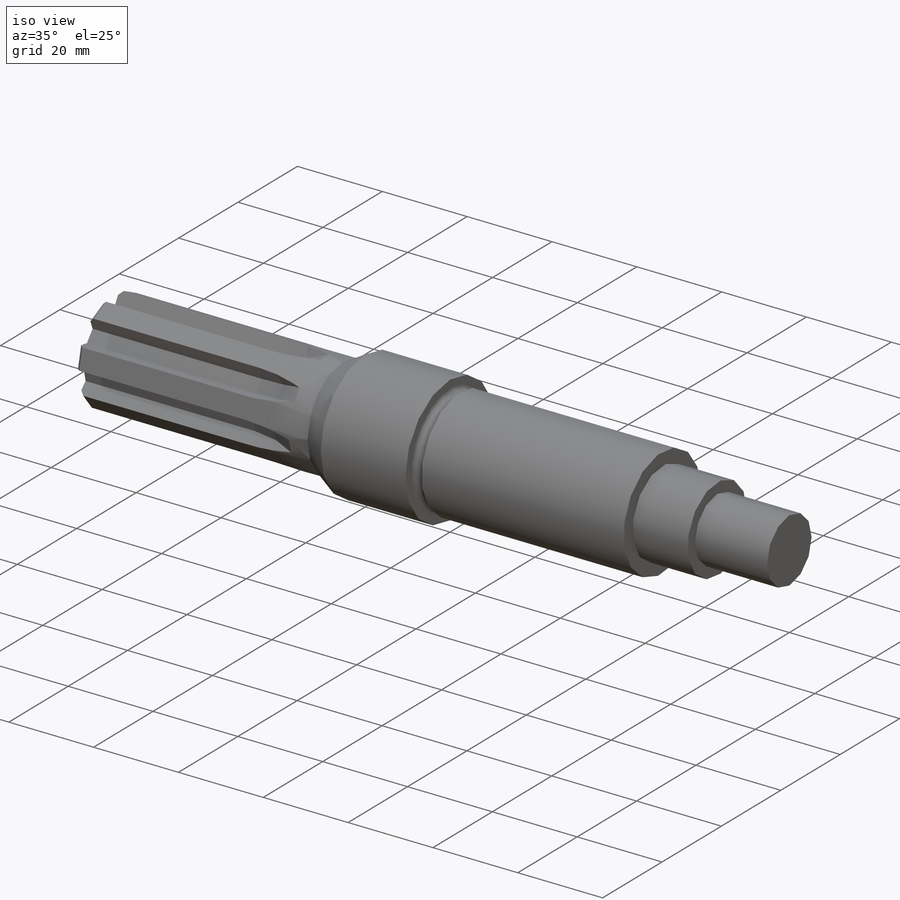
[diagram: iso view]
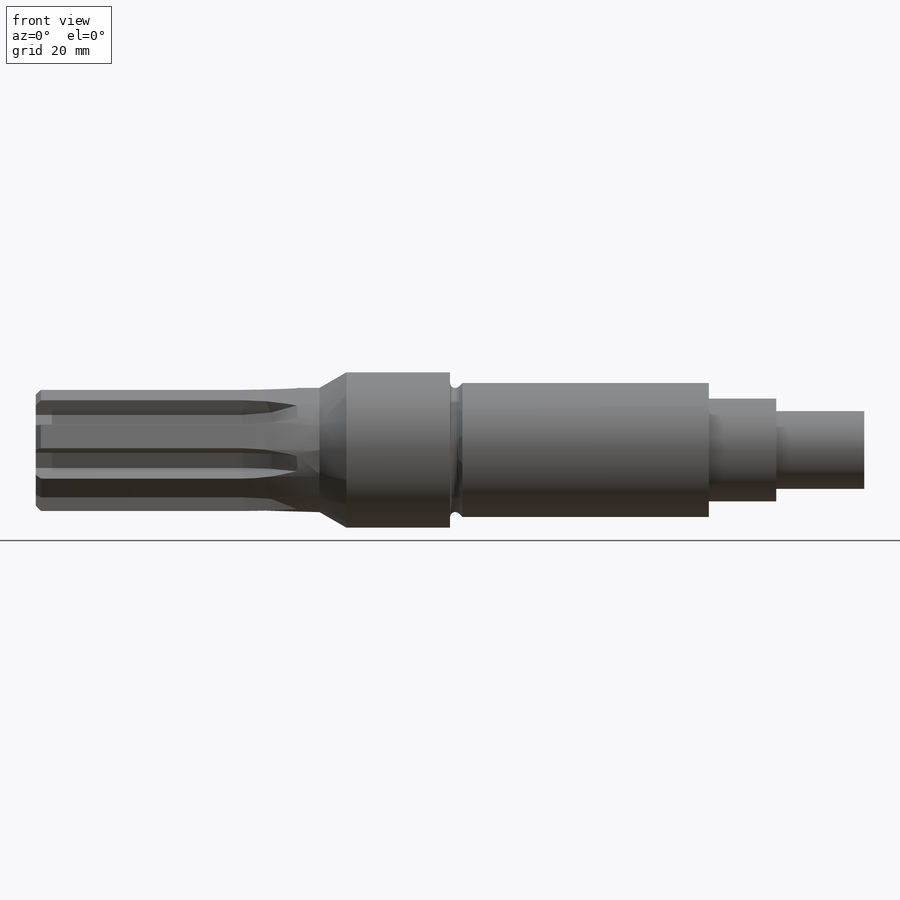
[diagram: front view]
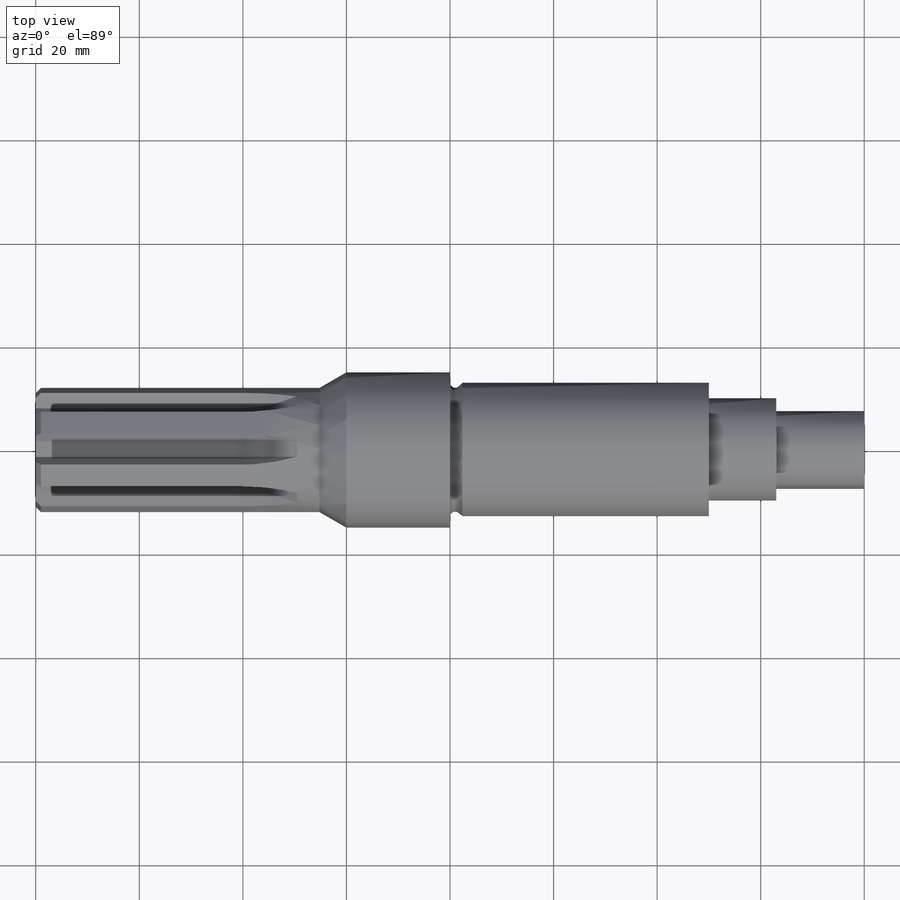
[diagram: top view]
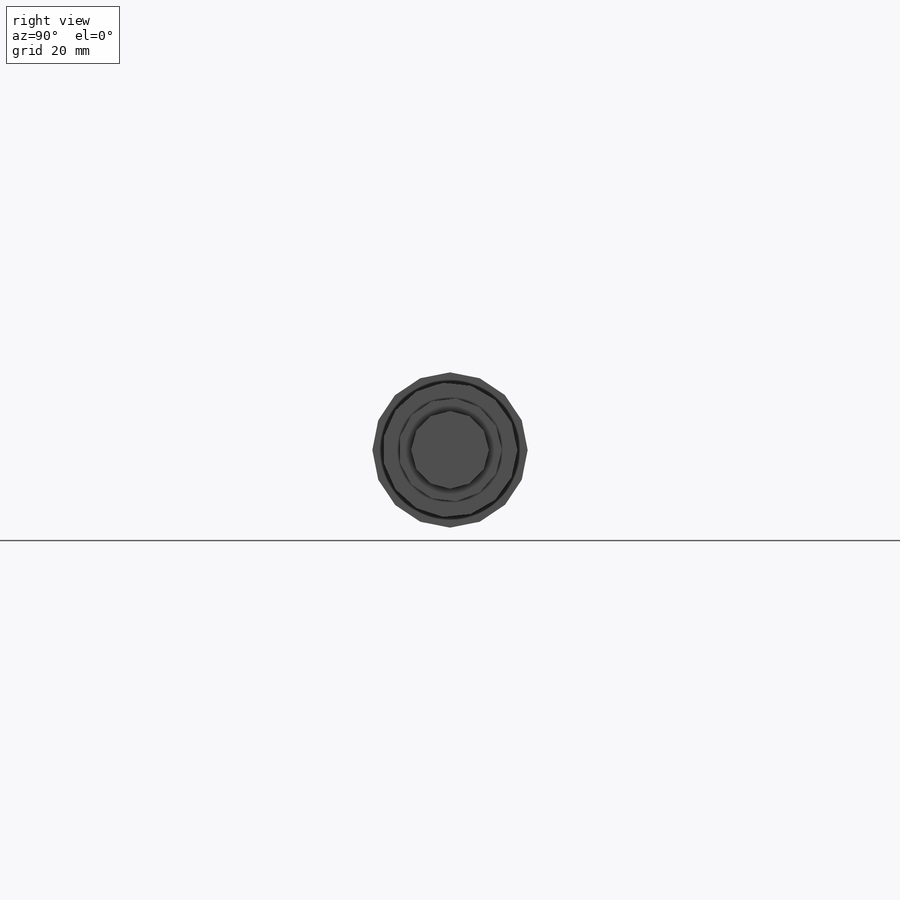
[diagram: right view]
SOLIDWORKS PART (.sldprt)
format: sldprt  version: not decoded by parser v0  size: 278,016 bytes
history: native  units: mm
features: plane x3, sketch x3, material x1, revolve x1, sweep x1, pattern_circular x1 (+9 scaffold rows collapsed)
feature tree (19):
  scaffold x9  (default folders/planes/origin — collapsed)
  material  "Materiál <není určen>"
  plane  "Přední rovina"
  plane  "Horní rovina"
  plane  "Pravá rovina"
  sketch  "Skica1"  dims[c1.D5=1.0mm c1.D9=~2.474632mm c1.D10=1.0mm c1.D1=5.0mm c1.D2=2.5mm c2.D2=60.0deg c2.D3=20.0mm c2.D4=24.0mm c2.D6=~6.71907mm c3.D6=30.0deg c3.D7=30.0mm c3.D8=26.0mm c3.D9=24.0mm c3.D11=~2.333492mm c4.D11=45.0deg c4.D12=20.0mm c4.D13=80.0mm c4.D14=20.0mm c4.D15=15.0mm c4.D16=17.0mm c4.D17=30.0mm c4.D18=80.0mm]
  revolve  "Rotovat1"  Angle=360deg
  sketch  "Skica2"  dims[D2=20.0mm D1=9.0mm D3=40.0mm]
  sketch  "Skica3"  dims[c1.D1=3.0mm c1.D2=~3.233855mm c2.D2=60.0deg c2.D3=6.2647mm]
  sweep  "Odebrat tažením po křivce1"
  pattern_circular  "Kruhové pole1"  Count=7 Angle=360deg
decode coverage: 5 of 6 modeling features carry decoded parameters
note: ~ marks probable driven/reference dimensions
note: suppression state not decoded; provenance and decode notes live in map.json
